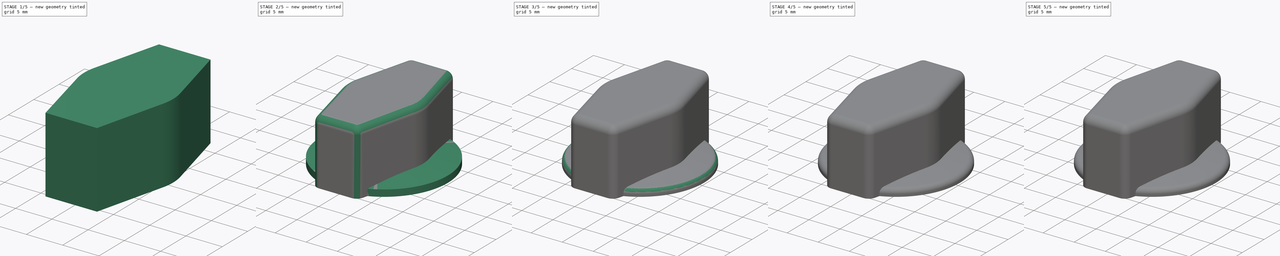
[diagram: build sequence overview — one tinted view per stage of 5, left to right]
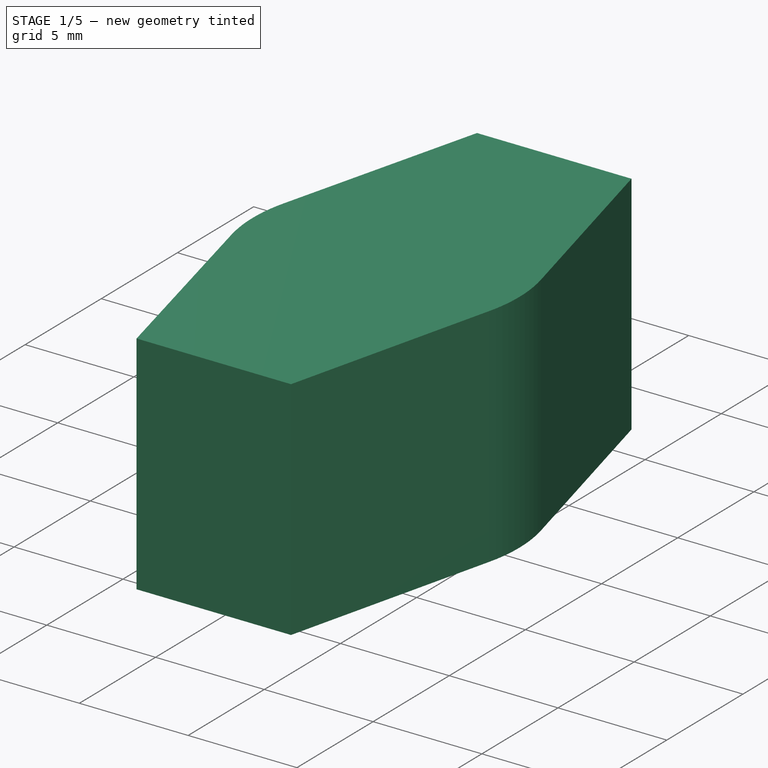
[diagram: stage 1 of 5 — iso view after this stage's code; geometry added in this stage tinted green]
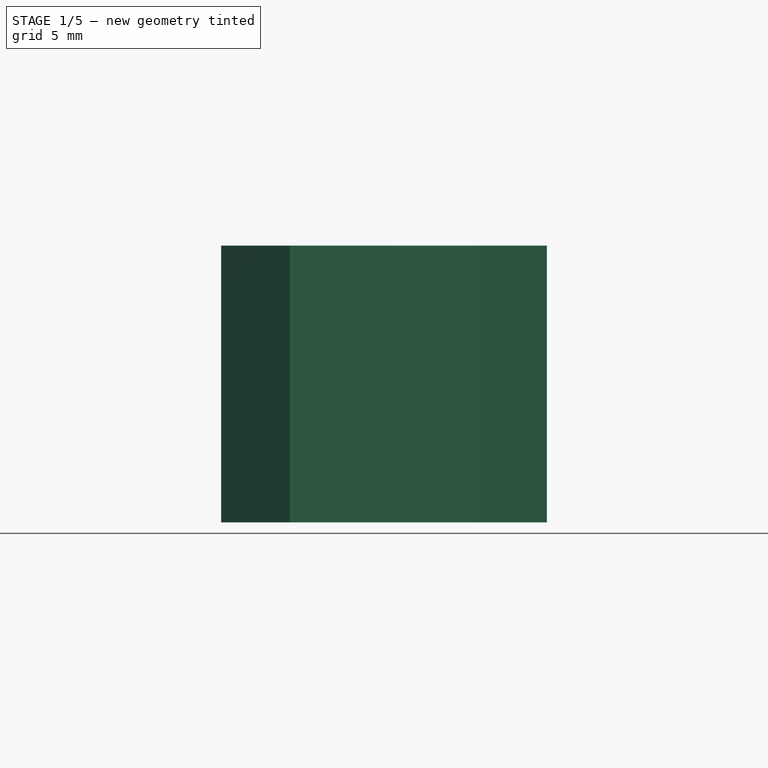
[diagram: stage 1 of 5 — front view after this stage's code; geometry added in this stage tinted green]
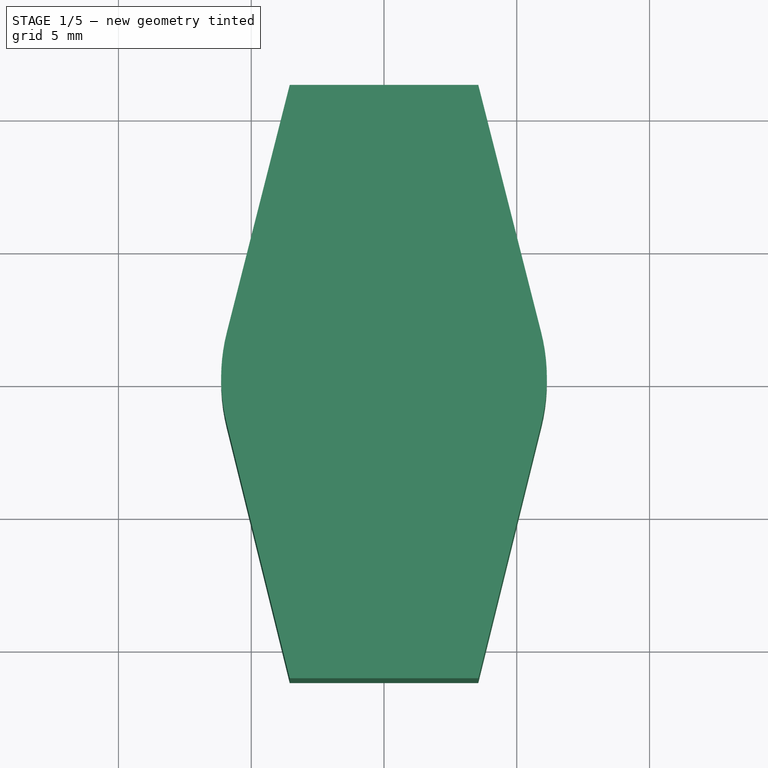
[diagram: stage 1 of 5 — top view after this stage's code; geometry added in this stage tinted green]
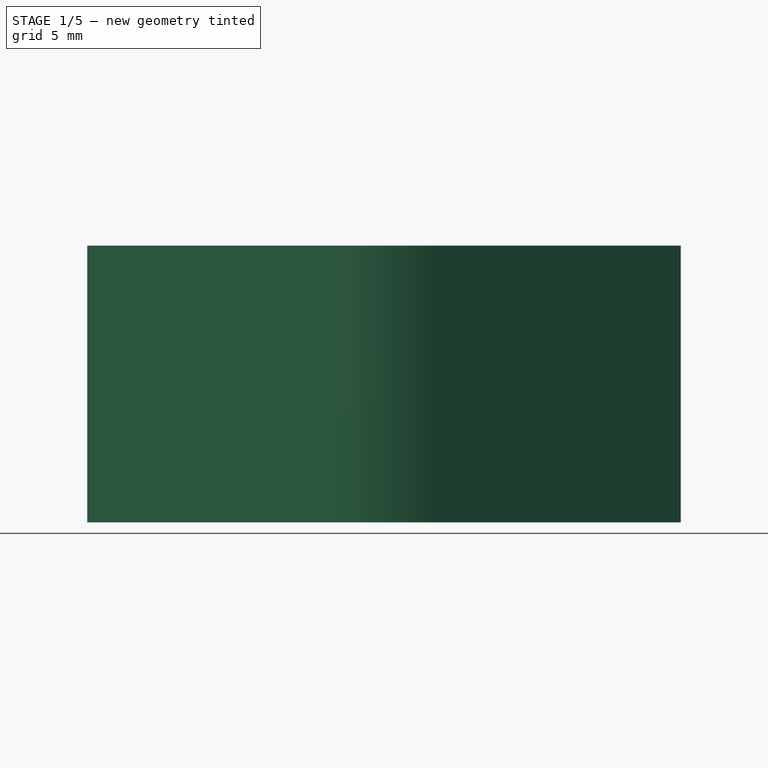
[diagram: stage 1 of 5 — right view after this stage's code; geometry added in this stage tinted green]
FCSTD DOCUMENT  (FreeCAD 0.19R24291 (Git))
Label: pointer-knob
License: All rights reserved
LicenseURL: http://en.wikipedia.org/wiki/All_rights_reserved
objects: Part::Fillet×4, Part::Cut×4, Sketcher::SketchObject×3, Part::Extrusion×2, Part::Cylinder×2, Part::FeaturePython×1, Part::Sphere×1, PartDesign::Pad×1, PartDesign::Body×1, Part::MultiCommon×1, Part::MultiFuse×1
note: 22 computed .brp shape members not serialized (recipe doc carries the construction recipe); baked Part::Feature solids carry a one-line shape summary decoded from their .brp

FEATURE [Part::Extrusion] Extrude
  Base = -> Sketch
  Dir = (0,0,1)
  DirMode = 2
  FaceMakerClass = Part::FaceMakerBullseye
  LengthFwd = 10.42
  LengthRev = 0
  Solid = true
  Symmetric = false
FEATURE [Part::Fillet] Fillet
  Base = -> Extrude
  Edges = 2 edges r=7: [Edge5,Edge14]
FEATURE [Part::Cylinder] Cylinder001
  Angle = 360
  AttacherType = Attacher::AttachEngine3D
  Height = 19
  Placement = pos=(0,9.5,8.5) rot=(1,0,0;1.5708rad)
  Radius = 1.5
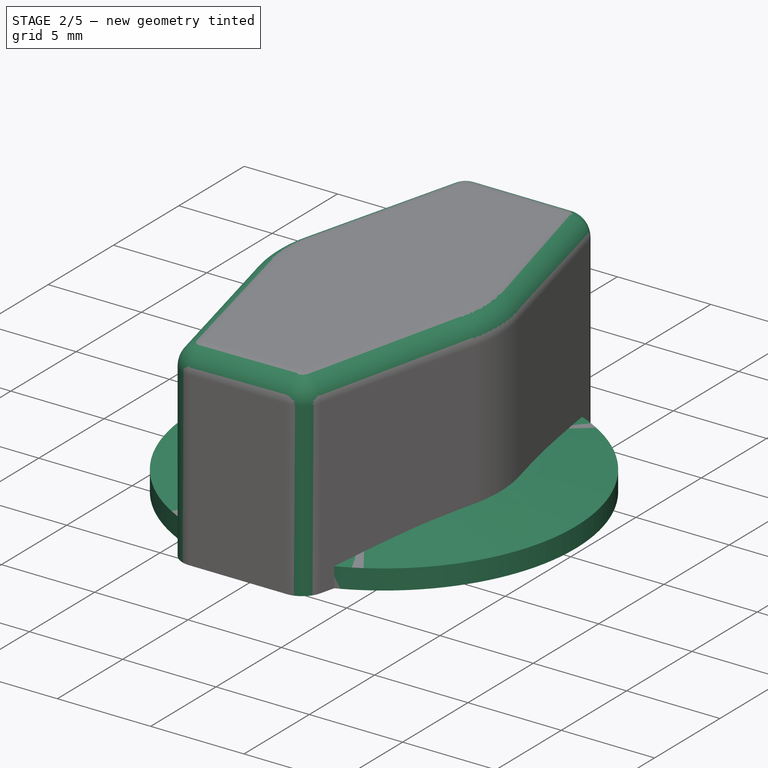
[diagram: stage 2 of 5 — iso view after this stage's code; geometry added in this stage tinted green]
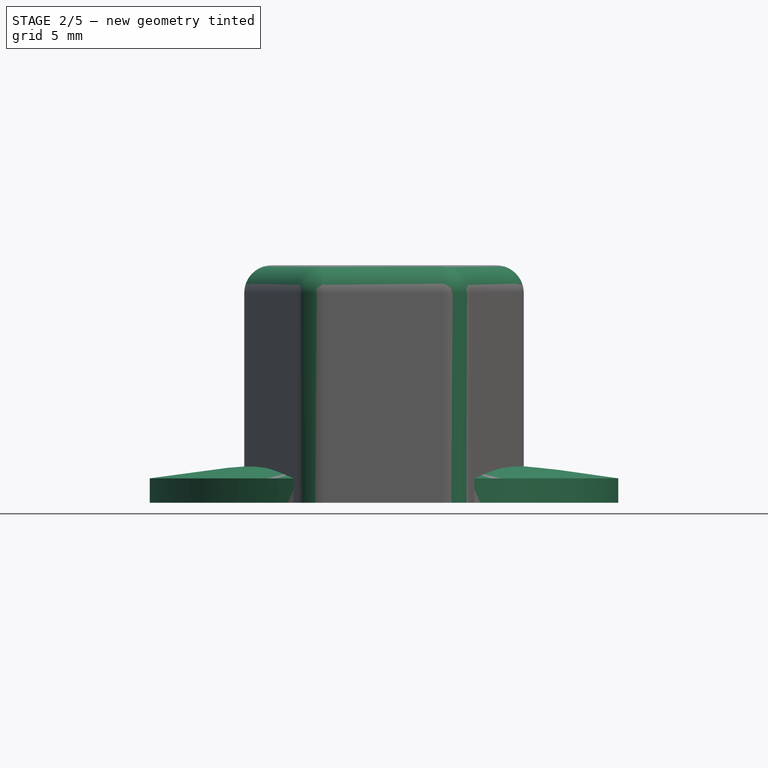
[diagram: stage 2 of 5 — front view after this stage's code; geometry added in this stage tinted green]
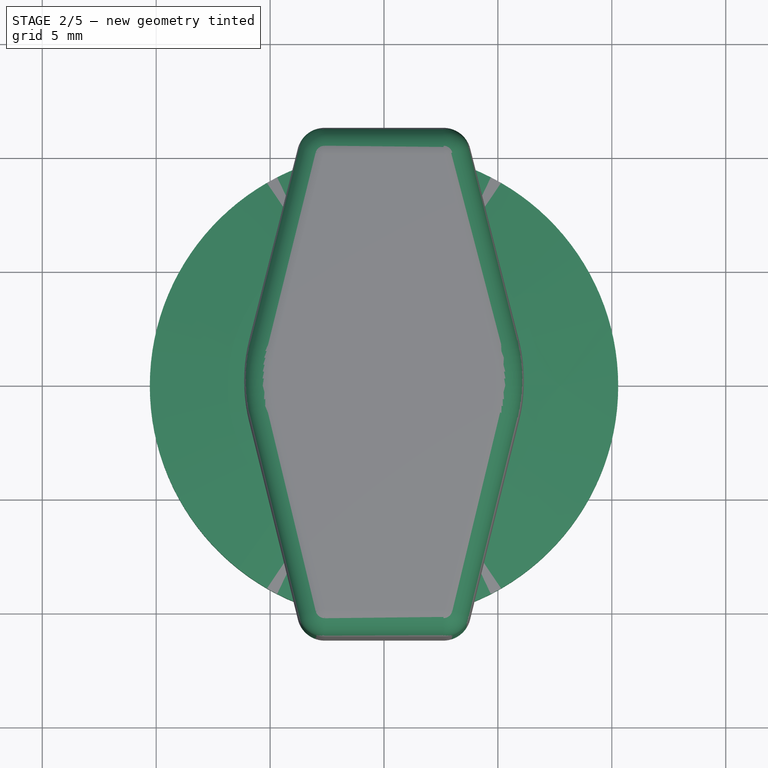
[diagram: stage 2 of 5 — top view after this stage's code; geometry added in this stage tinted green]
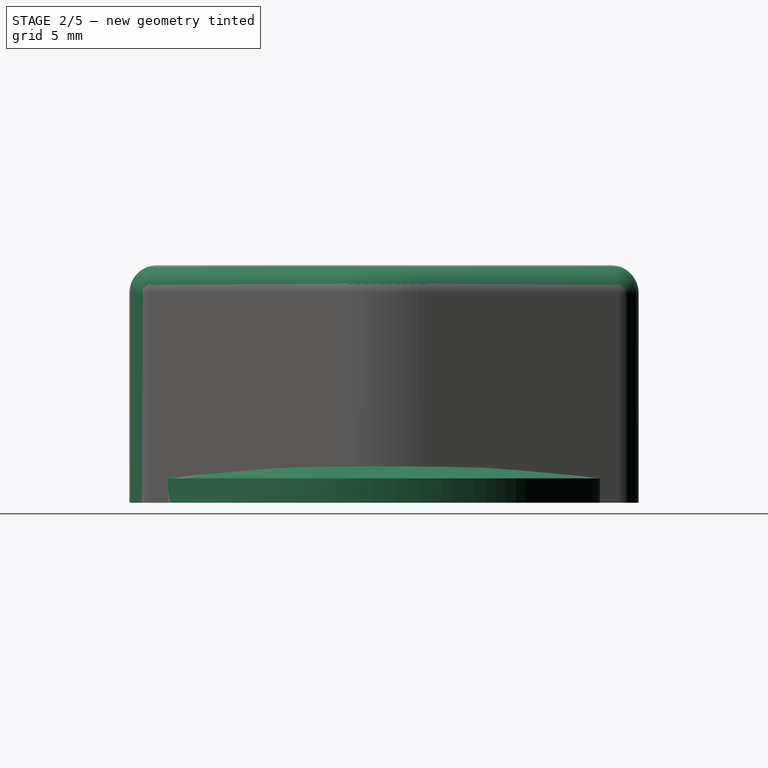
[diagram: stage 2 of 5 — right view after this stage's code; geometry added in this stage tinted green]
FEATURE [Part::Sphere] Sphere
  Angle1 = -90
  Angle2 = 90
  Angle3 = 360
  AttacherType = Attacher::AttachEngine3D
  Placement = pos=(0,0,-62.1) rot=(0,0,1;0rad)
  Radius = 64
FEATURE [PartDesign::Pad] Pad
  Direction = (1,1,1)
  Length = 2.54
  Length2 = 100
  Profile = -> Sketch001
  Type = 0
FEATURE [PartDesign::Body] Body
  Group = -> [Sketch,Sketch001,Pad,Sketch002]
  Origin = -> Origin
  Tip = -> Pad
FEATURE [Part::MultiCommon] Common
  Shapes = -> [Pad,Sphere]
FEATURE [Part::Fillet] Fillet004
  Base = -> Fillet
  Edges = 12 edges r=1.21: [Edge2,Edge3,Edge13,Edge14,Edge15,Edge16,Edge17,Edge18,Edge19,Edge20,Edge21,Edge23]
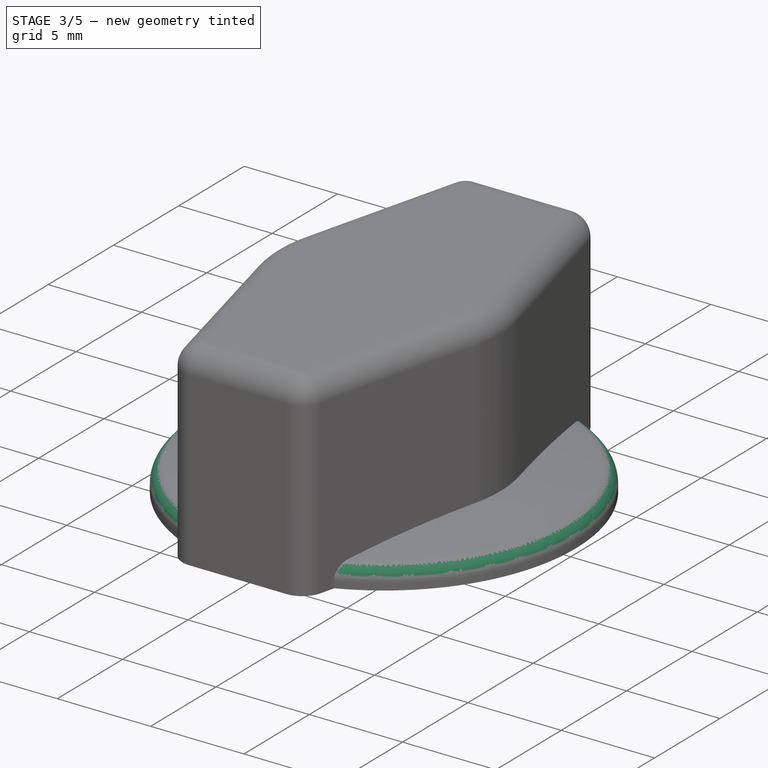
[diagram: stage 3 of 5 — iso view after this stage's code; geometry added in this stage tinted green]
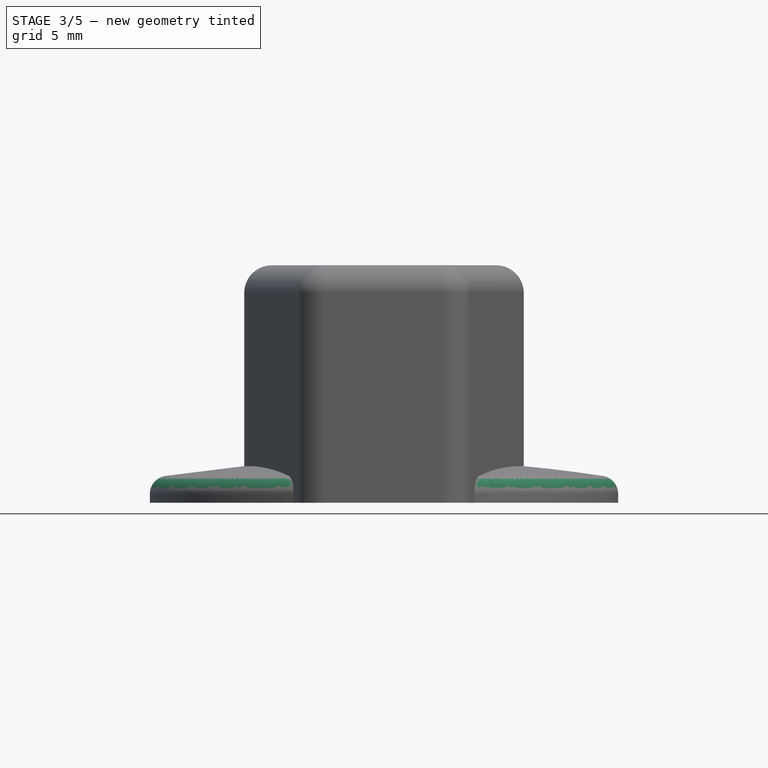
[diagram: stage 3 of 5 — front view after this stage's code; geometry added in this stage tinted green]
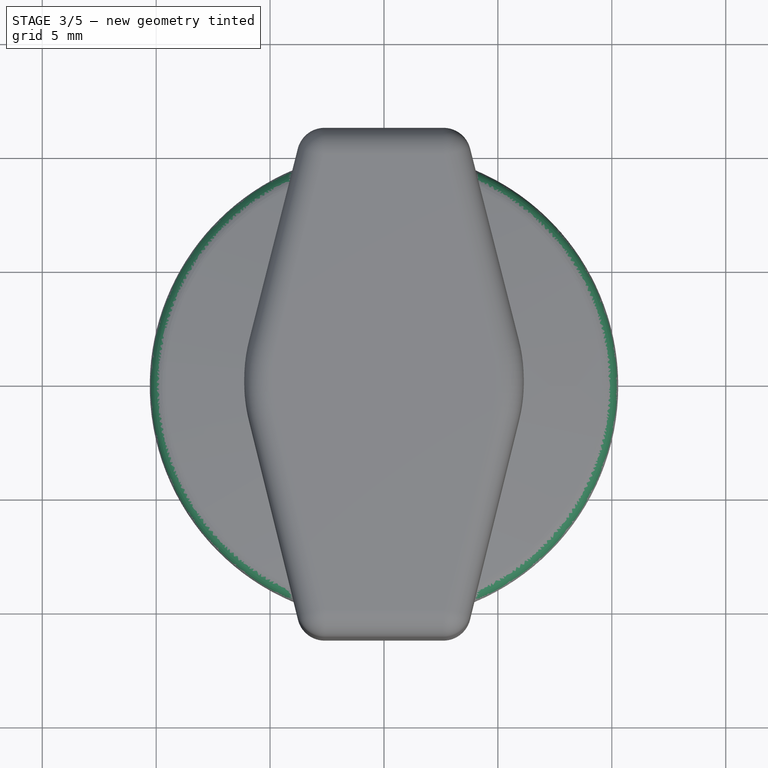
[diagram: stage 3 of 5 — top view after this stage's code; geometry added in this stage tinted green]
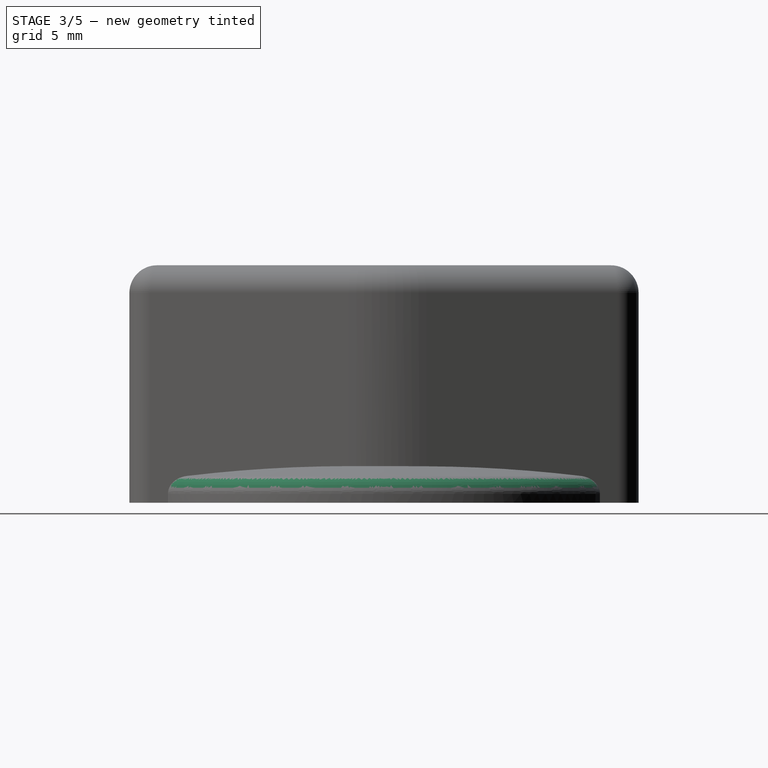
[diagram: stage 3 of 5 — right view after this stage's code; geometry added in this stage tinted green]
FEATURE [Sketcher::SketchObject] Sketch002
  FullyConstrained = false
  MapMode = 5
  Support = -> [XY_Plane]
  sketch-geometry (16):
    g0: LineSegment StartX=-1.60171 StartY=3.75608 StartZ=0 EndX=1.54168 EndY=3.75608 EndZ=0
    g1: LineSegment StartX=3.12712 StartY=5.34151 StartZ=0 EndX=3.12712 EndY=9.28219 EndZ=0
    g2: LineSegment StartX=1.54168 StartY=10.8676 StartZ=0 EndX=-1.60171 EndY=10.8676 EndZ=0
    g3: LineSegment StartX=-3.18714 StartY=9.28219 StartZ=0 EndX=-3.18714 EndY=5.34151 EndZ=0
    g4: ArcOfCircle CenterX=-1.60171 CenterY=5.34151 CenterZ=0 NormalX=0 NormalY=0 NormalZ=1 AngleXU=0 Radius=1.58544 StartAngle=3.14159 EndAngle=4.71239
    g5: ArcOfCircle CenterX=-1.60171 CenterY=9.28219 CenterZ=0 NormalX=0 NormalY=0 NormalZ=1 AngleXU=0 Radius=1.58544 StartAngle=1.5708 EndAngle=3.14159
    g6: ArcOfCircle CenterX=1.54168 CenterY=9.28219 CenterZ=0 NormalX=0 NormalY=0 NormalZ=1 AngleXU=0 Radius=1.58544 StartAngle=1e-16 EndAngle=1.5708
    g7: ArcOfCircle CenterX=1.54168 CenterY=5.34151 CenterZ=0 NormalX=0 NormalY=0 NormalZ=1 AngleXU=0 Radius=1.58544 StartAngle=4.71239 EndAngle=6.28319
    g8: ArcOfCircle CenterX=-1.60171 CenterY=-9.28219 CenterZ=0 NormalX=0 NormalY=0 NormalZ=1 AngleXU=0 Radius=1.58544 StartAngle=3.14159 EndAngle=4.71239
    g9: LineSegment StartX=-1.60171 StartY=-10.8676 StartZ=0 EndX=1.54168 EndY=-10.8676 EndZ=0
    g10: LineSegment StartX=3.12712 StartY=-9.28219 StartZ=0 EndX=3.12712 EndY=-5.34151 EndZ=0
    g11: LineSegment StartX=1.54168 StartY=-3.75608 StartZ=0 EndX=-1.60171 EndY=-3.75608 EndZ=0
    g12: LineSegment StartX=-3.18714 StartY=-5.34151 StartZ=0 EndX=-3.18714 EndY=-9.28219 EndZ=0
    g13: ArcOfCircle CenterX=-1.60171 CenterY=-5.34151 CenterZ=0 NormalX=0 NormalY=0 NormalZ=1 AngleXU=0 Radius=1.58544 StartAngle=1.5708 EndAngle=3.14159
    g14: ArcOfCircle CenterX=1.54168 CenterY=-5.34151 CenterZ=0 NormalX=0 NormalY=0 NormalZ=1 AngleXU=0 Radius=1.58544 StartAngle=2e-16 EndAngle=1.5708
    g15: ArcOfCircle CenterX=1.54168 CenterY=-9.28219 CenterZ=0 NormalX=0 NormalY=0 NormalZ=1 AngleXU=0 Radius=1.58544 StartAngle=4.71239 EndAngle=6.28319
  constraints (34):
    c: Horizontal(g0)
    c: Horizontal(g2)
    c: Vertical(g1)
    c: Vertical(g3)
    c: Tangent(g0,g4) = -1.5708
    c: Tangent(g3,g4) = -1.5708
    c: Tangent(g3,g5) = -1.5708
    c: Tangent(g2,g5) = -1.5708
    c: Tangent(g2,g6) = -1.5708
    c: Tangent(g1,g6) = -1.5708
    c: Tangent(g1,g7) = -1.5708
    c: Tangent(g0,g7) = -1.5708
    c: Equal(g5,g6)
    c: Equal(g6,g7)
    c: Equal(g7,g4)
    c: Horizontal(g9)
    c: Horizontal(g11)
    c: Vertical(g10)
    c: Vertical(g12)
    c: Tangent(g9,g8) = -1.5708
    c: Tangent(g12,g8) = -1.5708
    c: Tangent(g12,g13) = -1.5708
    c: Tangent(g11,g13) = -1.5708
    c: Tangent(g11,g14) = -1.5708
    c: Tangent(g10,g14) = -1.5708
    c: Tangent(g10,g15) = -1.5708
    c: Tangent(g9,g15) = -1.5708
    c: Equal(g13,g14)
    c: Equal(g14,g15)
    c: Equal(g15,g8)
    c: Equal(g10,g1)
    c: Equal(g11,g0)
    c: Equal(g14,g6)
    c: Symmetric(g14,g7,g-1)
FEATURE [Part::Extrusion] Extrude001
  Base = -> Sketch002
  Dir = (0,0,1)
  DirMode = 2
  FaceMakerClass = Part::FaceMakerBullseye
  LengthFwd = 10
  LengthRev = 0
  Solid = true
  Symmetric = false
FEATURE [Part::Fillet] Fillet003
  Base = -> Common
  Edges = 1 edges r=0.8: [Edge3]
FEATURE [Part::MultiFuse] Fusion
  Shapes = -> [Fillet003,Fillet004]
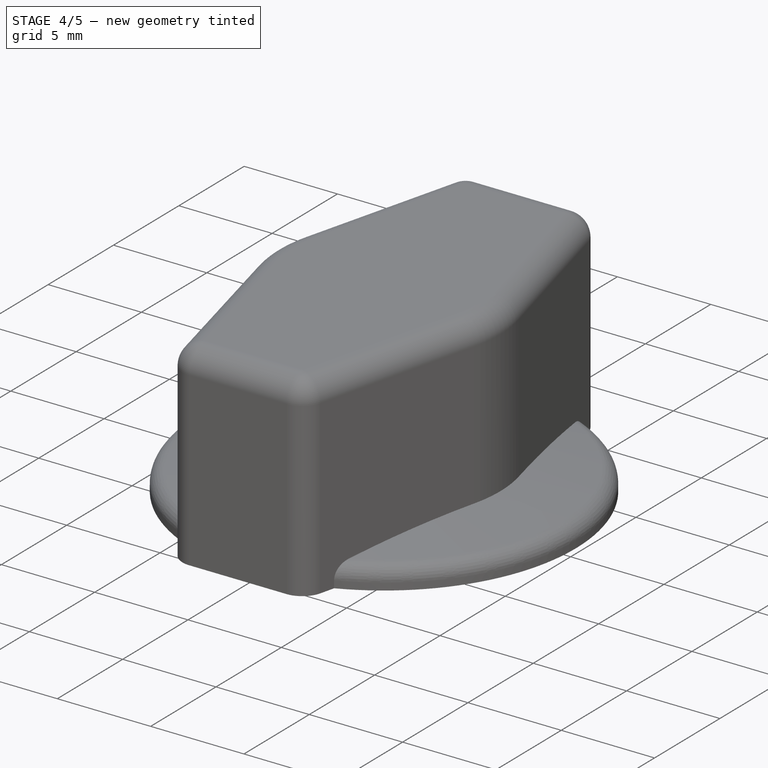
[diagram: stage 4 of 5 — iso view after this stage's code; geometry added in this stage tinted green]
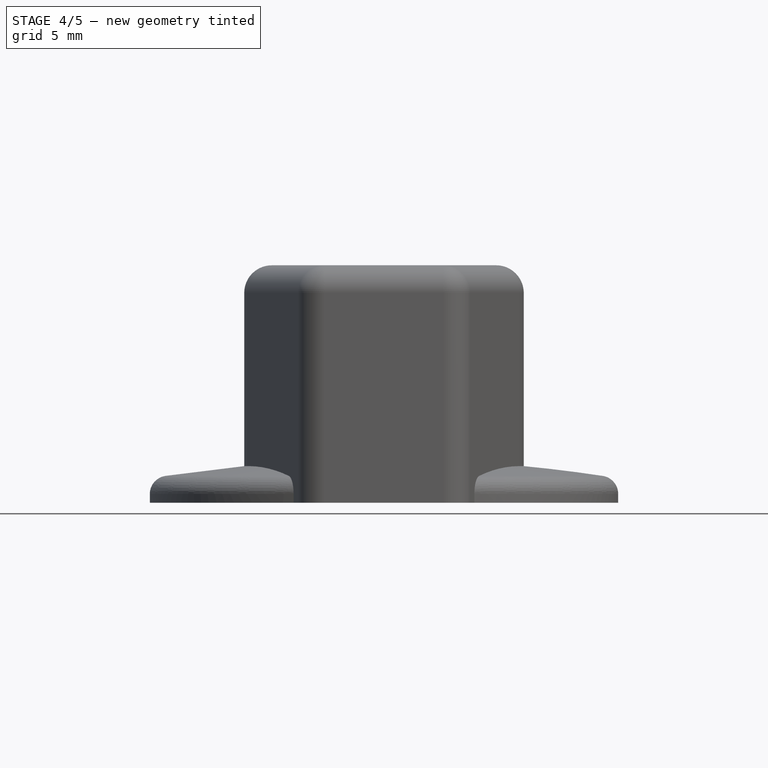
[diagram: stage 4 of 5 — front view after this stage's code; geometry added in this stage tinted green]
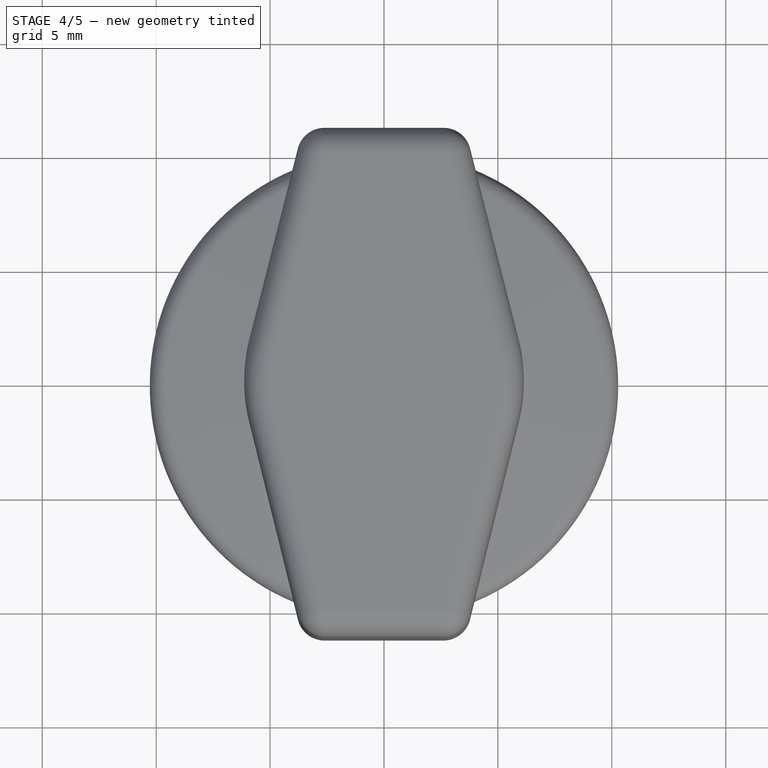
[diagram: stage 4 of 5 — top view after this stage's code; geometry added in this stage tinted green]
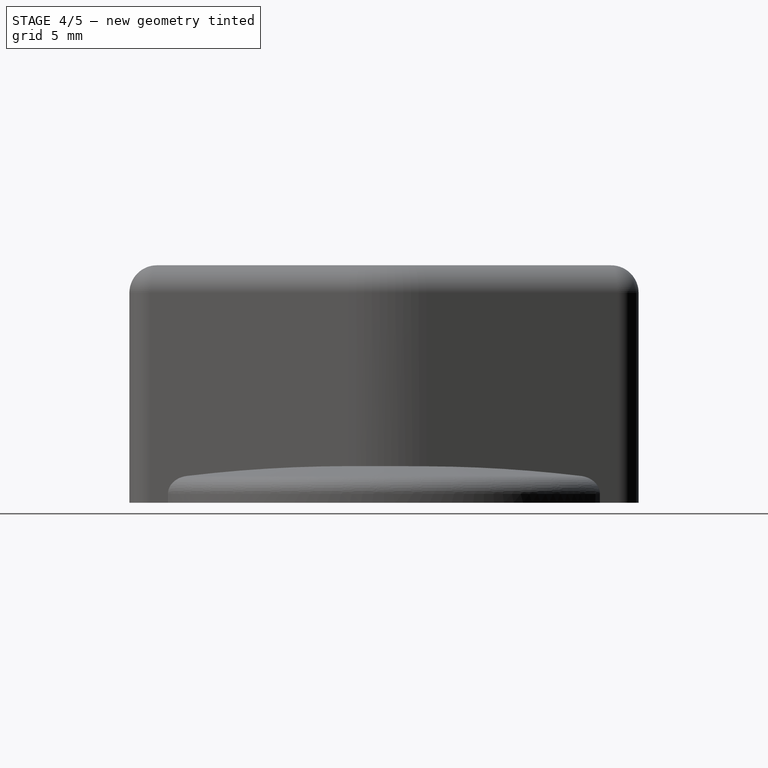
[diagram: stage 4 of 5 — right view after this stage's code; geometry added in this stage tinted green]
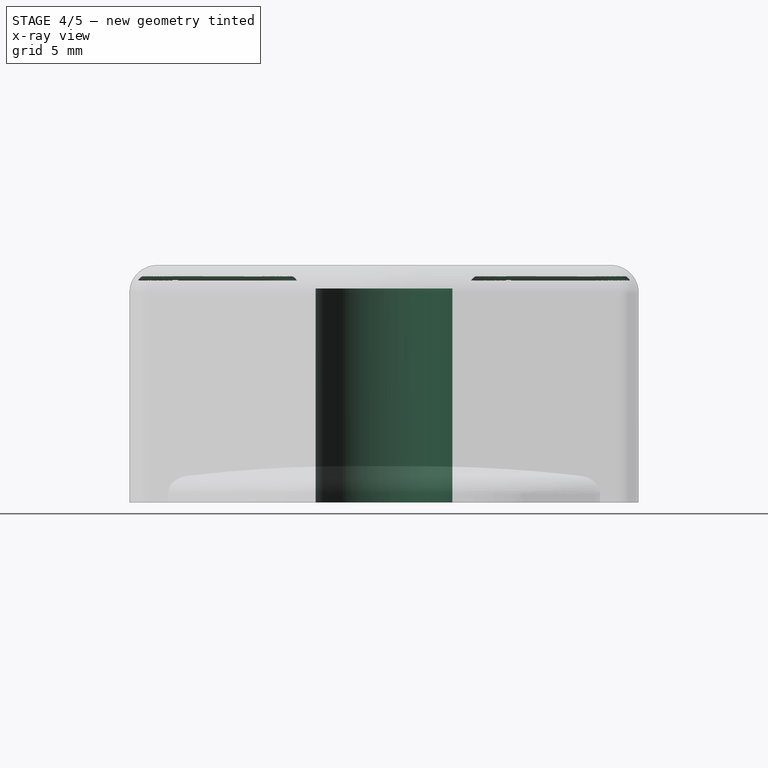
[diagram: stage 4 of 5 — x-ray composite at the right view; earlier geometry ghosted, this stage's added geometry solid]
FEATURE [Part::Cylinder] Cylinder
  Angle = 360
  AttacherType = Attacher::AttachEngine3D
  Height = 9.4
  Radius = 3
FEATURE [Part::Fillet] Fillet002
  Base = -> Extrude001
  Edges = 16 edges r=0.5: [Edge4,Edge7,Edge10,Edge13,Edge16,Edge19,Edge22,Edge24,Edge28,Edge31,Edge34,Edge37,Edge40,Edge43,Edge46,Edge48]
FEATURE [Part::Cut] Cut  label="shaf hole"
  Base = -> Fusion
  Tool = -> Fillet002
FEATURE [Part::Cut] Cut001
  Base = -> Cut
  Tool = -> Cylinder
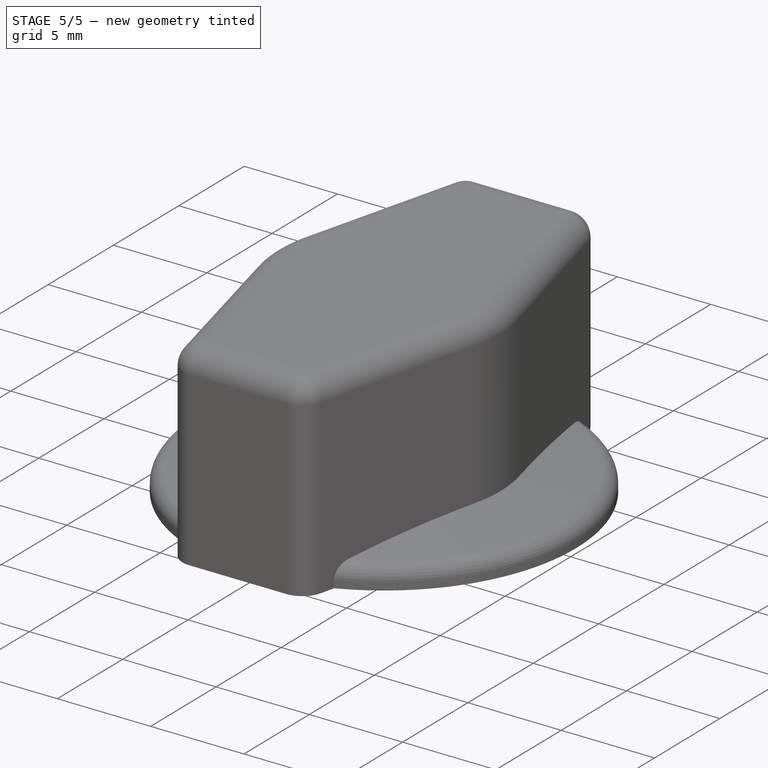
[diagram: stage 5 of 5 — iso view after this stage's code; geometry added in this stage tinted green]
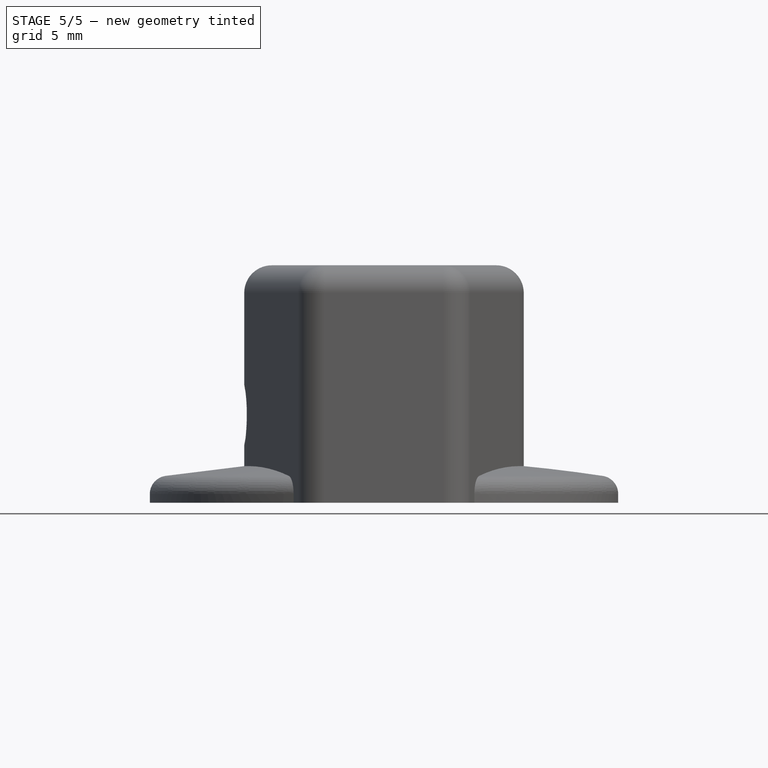
[diagram: stage 5 of 5 — front view after this stage's code; geometry added in this stage tinted green]
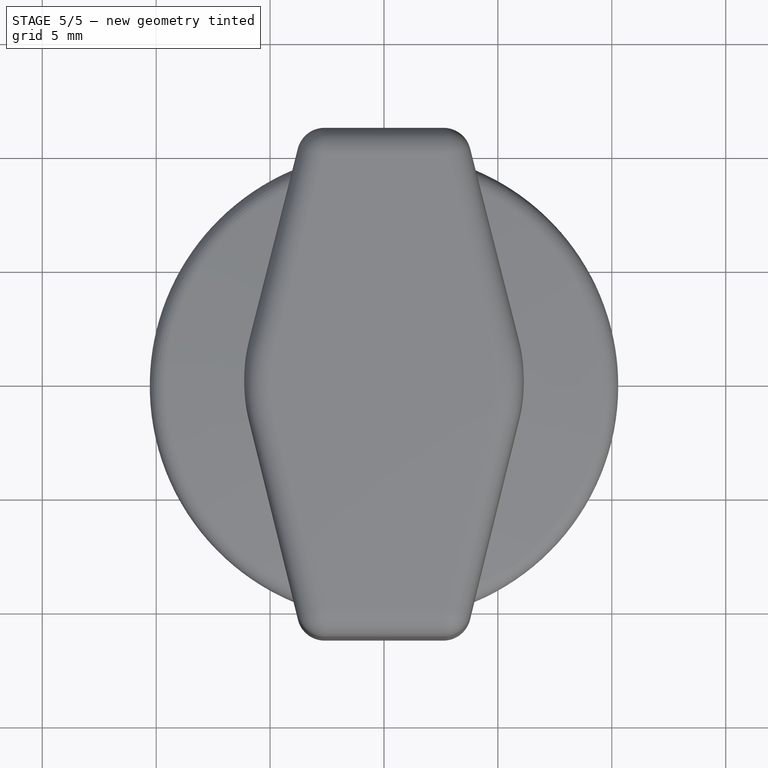
[diagram: stage 5 of 5 — top view after this stage's code; geometry added in this stage tinted green]
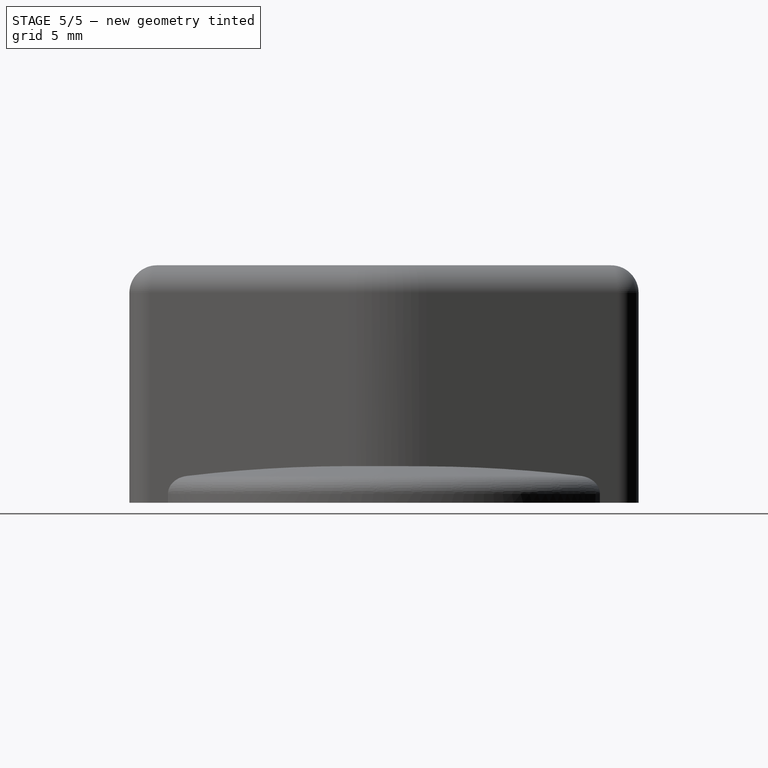
[diagram: stage 5 of 5 — right view after this stage's code; geometry added in this stage tinted green]
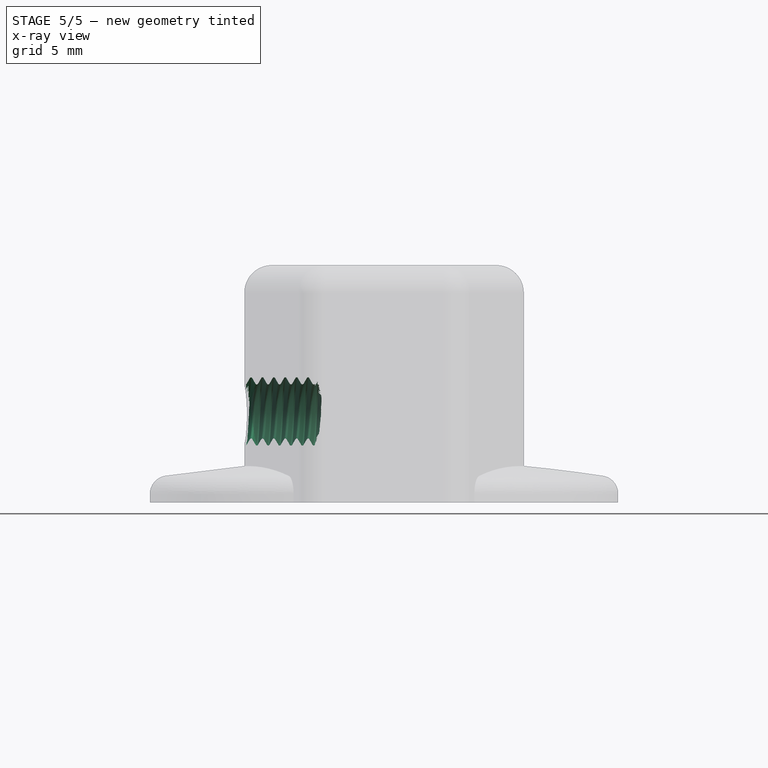
[diagram: stage 5 of 5 — x-ray composite at the front view; earlier geometry ghosted, this stage's added geometry solid]
FEATURE [Sketcher::SketchObject] Sketch
  FullyConstrained = false
  MapMode = 5
  Support = -> [XY_Plane]
  sketch-geometry (6):
    g0: LineSegment StartX=-3.55 StartY=-11.175 StartZ=0 EndX=3.55 EndY=-11.175 EndZ=0
    g1: LineSegment StartX=3.55 StartY=-11.175 StartZ=0 EndX=6.35 EndY=0.156362 EndZ=0
    g2: LineSegment StartX=6.35 StartY=0.156362 StartZ=0 EndX=3.55 EndY=11.175 EndZ=0
    g3: LineSegment StartX=3.55 StartY=11.175 StartZ=0 EndX=-3.55 EndY=11.175 EndZ=0
    g4: LineSegment StartX=-3.55 StartY=11.175 StartZ=0 EndX=-6.35 EndY=0.156362 EndZ=0
    g5: LineSegment StartX=-6.35 StartY=0.156362 StartZ=0 EndX=-3.55 EndY=-11.175 EndZ=0
  constraints (14):
    c: Coincident(g3,g4)
    c: Horizontal(g0,g0)
    c: Coincident(g5,g0)
    c: Coincident(g3,g2)
    c: Symmetric(g3,g2,g-2)
    c: Vertical(g0,g2)
    c: Symmetric(g3,g0,g-1)
    c: Coincident(g0,g1)
    c: Coincident(g2,g1)
    c: Coincident(g5,g4)
    c: Symmetric(g1,g4,g-2)
    c: DistanceX(g4,g1) = 12.7
    c: DistanceX(g3,g2) = 7.1
    c: DistanceY(g0,g2) = 22.35
FEATURE [Sketcher::SketchObject] Sketch001
  FullyConstrained = true
  MapMode = 5
  Support = -> [XY_Plane]
  sketch-geometry (1):
    g0: Circle CenterX=0 CenterY=0 CenterZ=0 NormalX=0 NormalY=0 NormalZ=1 AngleXU=0 Radius=10.28
  constraints (2):
    c: Coincident(g0,g-1)
    c: Radius(g0) = 10.28
FEATURE [Part::FeaturePython] Screw  label="M3x10-Screw"  # Fasteners workbench fastener (typed FeaturePython)
  Placement = pos=(-11.3031,0.118215,4) rot=(0,-1,0;1.5708rad)
  diameter = 1
  invert = false
  length = 2
  lengthCustom = 10
  matchOuter = false
  offset = 0
  thread = true
  type = 39
FEATURE [Part::Cut] Cut002
  Base = -> Cut001
  Tool = -> Screw
FEATURE [Part::Cut] Cut003
  Base = -> Cut002
  Tool = -> Cylinder001
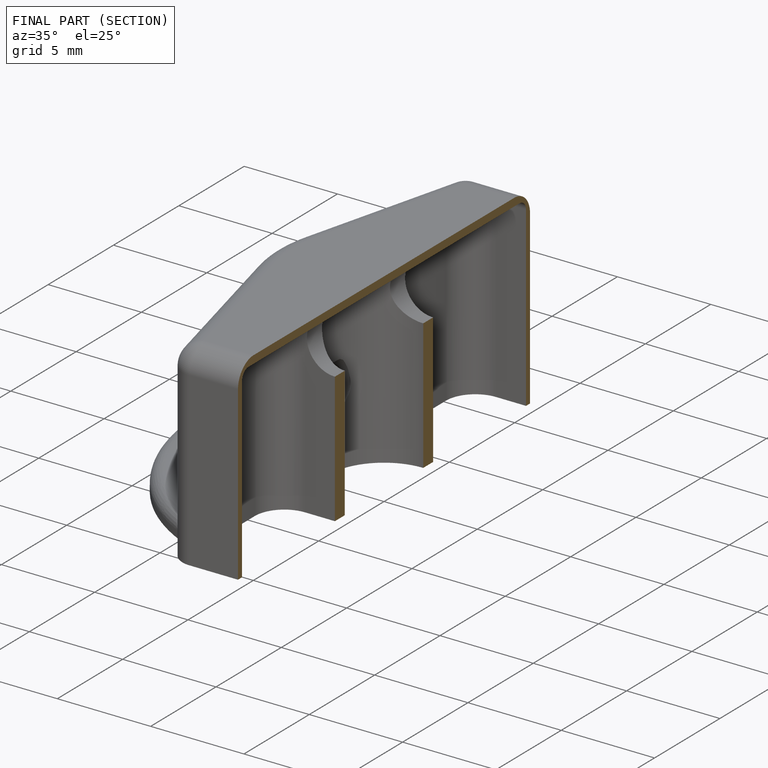
[diagram: finished part — half-section view (interior)]
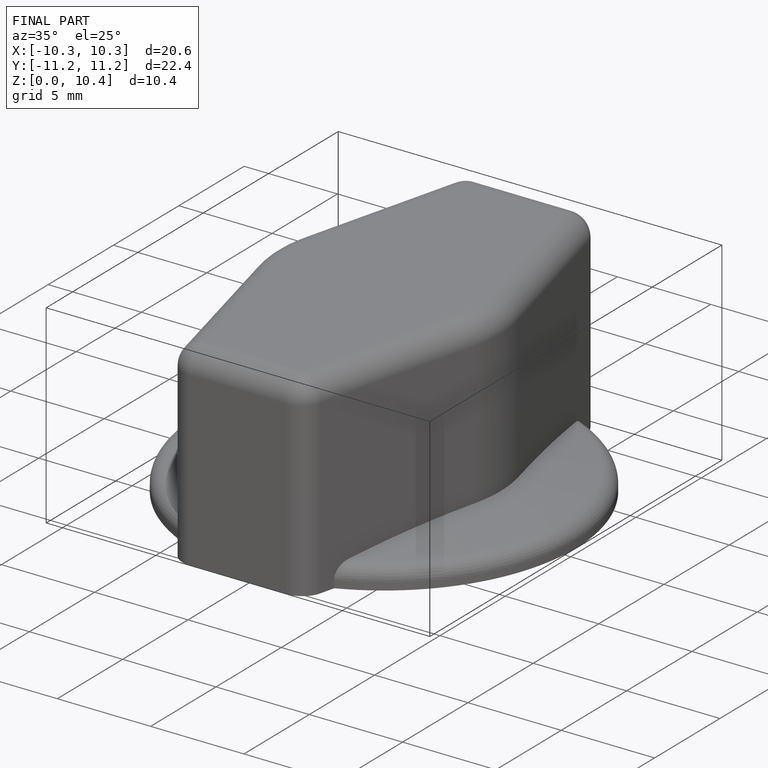
[diagram: finished part — iso view with bounding-box wireframe]
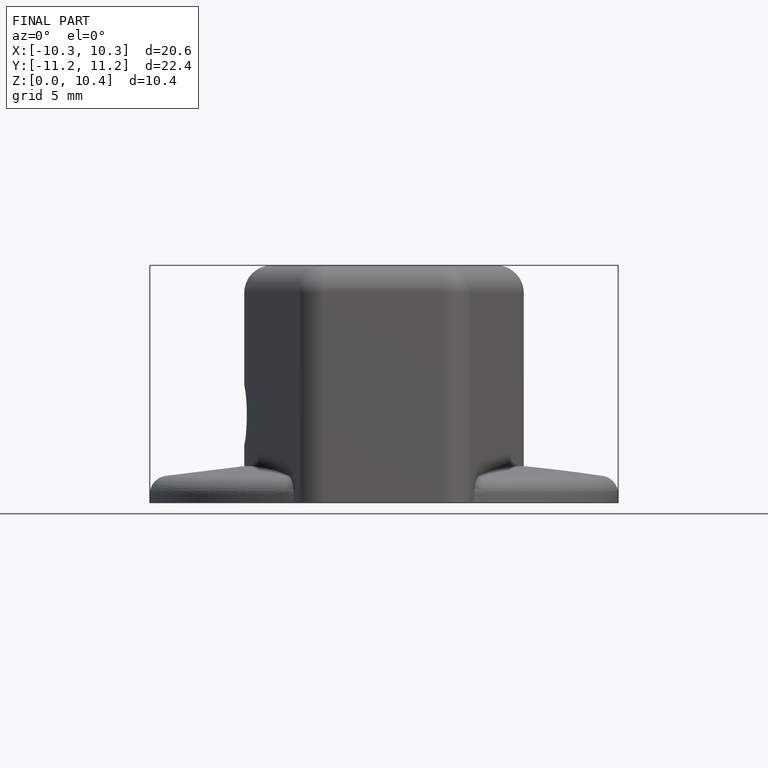
[diagram: finished part — front view with bounding-box wireframe]
